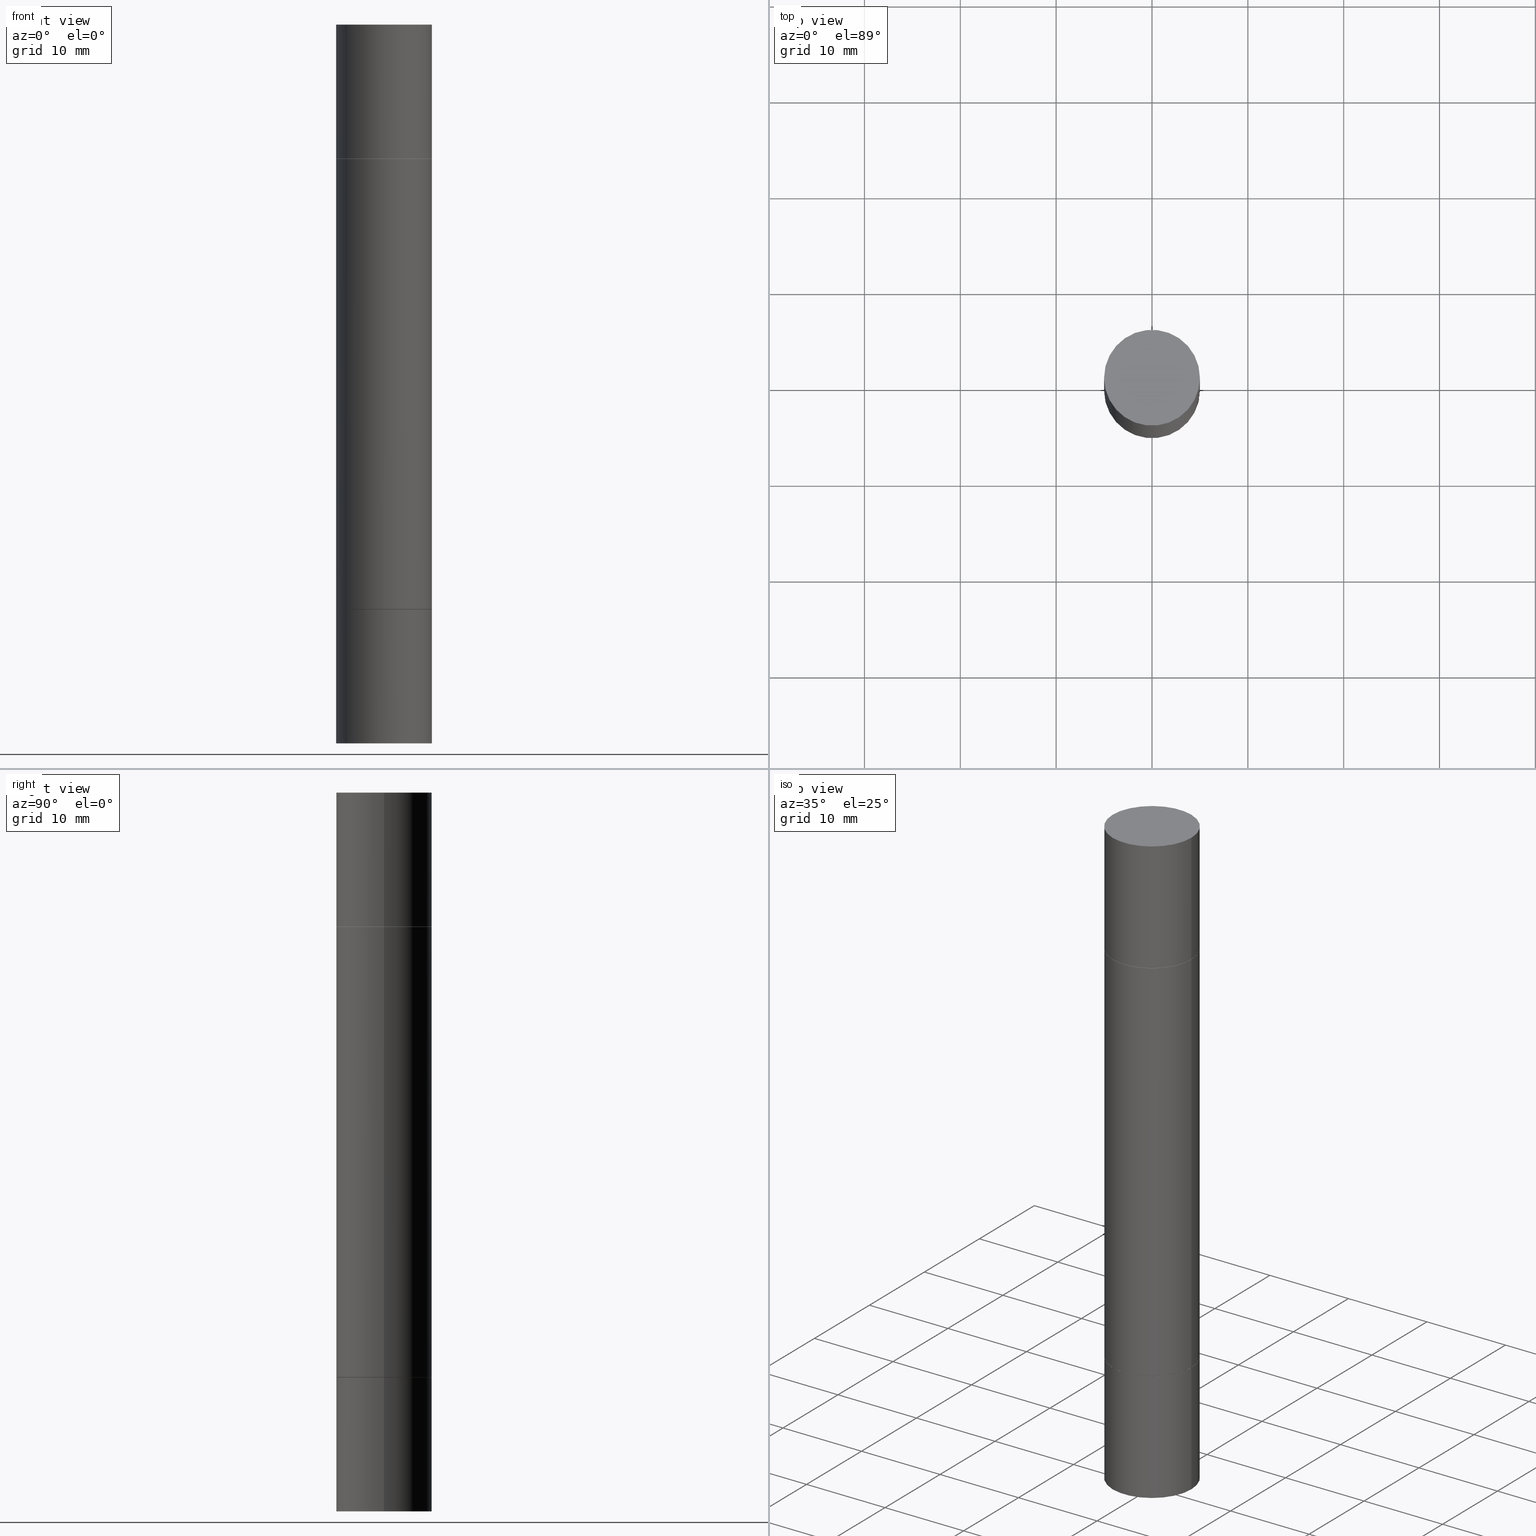
[diagram: canonical four-view strip — front | top / right | iso, engineering-drawing reading convention]
A machine part, canonical four-view strip (front | top / right | iso — engineering-drawing reading convention). The complete STEP part file that produces these views, byte-faithful:
ISO-10303-21;
HEADER;
FILE_DESCRIPTION (( 'STEP AP203' ),
    '1' );
FILE_NAME ('49044.STEP',
    '2024-03-04T15:52:55',
    ( '' ),
    ( '' ),
    'SwSTEP 2.0',
    'SolidWorks 2023',
    '' );
FILE_SCHEMA (( 'CONFIG_CONTROL_DESIGN' ));
ENDSEC;

DATA;
#1 = ORIENTED_EDGE ( 'NONE', *, *, #195, .T. ) ;
#2 = CARTESIAN_POINT ( 'NONE',  ( 7.220980290903470182E-29, -1.030964609733603853E-14, -2.952799999999999869 ) ) ;
#3 = CARTESIAN_POINT ( 'NONE',  ( 5.873037884934223228E-29, -1.923200839900336120E-15, -0.5511999999999995792 ) ) ;
#4 = APPROVAL_ROLE ( '' ) ;
#5 = ORIENTED_EDGE ( 'NONE', *, *, #338, .T. ) ;
#6 = CARTESIAN_POINT ( 'NONE',  ( 0.000000000000000000, -1.031172645228302408E-14, -2.952799999999998981 ) ) ;
#7 = CIRCLE ( 'NONE', #399, 0.1968500000000000250 ) ;
#8 = PRODUCT ( '49044', '49044', '', ( #312 ) ) ;
#9 = VERTEX_POINT ( 'NONE', #155 ) ;
#10 = CARTESIAN_POINT ( 'NONE',  ( 0.1968500000000000250, -3.297797043002877729E-15, -0.5511999999999995792 ) ) ;
#11 = VERTEX_POINT ( 'NONE', #160 ) ;
#12 = DIRECTION ( 'NONE',  ( -2.445468806185136597E-29, 3.491481338843145583E-15, 1.000000000000000000 ) ) ;
#13 = VERTEX_POINT ( 'NONE', #507 ) ;
#14 = DIRECTION ( 'NONE',  ( 1.000000000000000000, -6.982962677686268288E-15, 0.000000000000000000 ) ) ;
#15 = VERTEX_POINT ( 'NONE', #358 ) ;
#16 = FACE_OUTER_BOUND ( 'NONE', #538, .T. ) ;
#17 = CARTESIAN_POINT ( 'NONE',  ( 0.000000000000000000, -1.031172645228302408E-14, -2.952799999999998981 ) ) ;
#18 = DIRECTION ( 'NONE',  ( -2.445468806185136597E-29, 3.491481338843145583E-15, 1.000000000000000000 ) ) ;
#19 = ORIENTED_EDGE ( 'NONE', *, *, #133, .T. ) ;
#20 = PRODUCT_RELATED_PRODUCT_CATEGORY ( 'detail', '', ( #8 ) ) ;
#21 = DIRECTION ( 'NONE',  ( -2.438088387897959769E-29, -3.492890411551753071E-15, -1.000000000000000000 ) ) ;
#22 = CIRCLE ( 'NONE', #405, 0.1968500000000000250 ) ;
#23 = ADVANCED_FACE ( 'NONE', ( #514 ), #202, .T. ) ;
#24 = AXIS2_PLACEMENT_3D ( 'NONE', #270, #223, #265 ) ;
#25 = DIRECTION ( 'NONE',  ( 1.000000000000000000, -6.982962677686264344E-15, 0.000000000000000000 ) ) ;
#26 = EDGE_CURVE ( 'NONE', #629, #231, #608, .T. ) ;
#27 = DIRECTION ( 'NONE',  ( 1.000000000000000000, -6.982962677686262766E-15, 0.000000000000000000 ) ) ;
#28 = CARTESIAN_POINT ( 'NONE',  ( 0.000000000000000000, 0.000000000000000000, -1.476399999999999491 ) ) ;
#29 = CYLINDRICAL_SURFACE ( 'NONE', #299, 0.1968500000000000250 ) ;
#30 = ORIENTED_EDGE ( 'NONE', *, *, #258, .T. ) ;
#31 = AXIS2_PLACEMENT_3D ( 'NONE', #281, #109, #232 ) ;
#32 = MANIFOLD_SOLID_BREP ( 'Combine1', #427 ) ;
#33 = DIRECTION ( 'NONE',  ( 0.000000000000000000, 3.492185875197449524E-15, 1.000000000000000000 ) ) ;
#34 = ORIENTED_EDGE ( 'NONE', *, *, #464, .T. ) ;
#35 = ORIENTED_EDGE ( 'NONE', *, *, #572, .F. ) ;
#36 = DATE_AND_TIME ( #302, #245 ) ;
#37 = DIRECTION ( 'NONE',  ( -2.445468806185136597E-29, -3.492890411551752677E-15, -1.000000000000000000 ) ) ;
#38 = EDGE_CURVE ( 'NONE', #484, #207, #257, .T. ) ;
#39 = AXIS2_PLACEMENT_3D ( 'NONE', #453, #345, #351 ) ;
#40 = EDGE_CURVE ( 'NONE', #92, #11, #210, .T. ) ;
#41 = ORIENTED_EDGE ( 'NONE', *, *, #572, .T. ) ;
#42 = APPROVAL_ROLE ( '' ) ;
#43 = CARTESIAN_POINT ( 'NONE',  ( -0.1958499999999999963, -6.993543635379541272E-15, -2.401599999999999735 ) ) ;
#44 = DIRECTION ( 'NONE',  ( 1.000000000000000000, -6.982962677686267499E-15, 0.000000000000000000 ) ) ;
#45 = ADVANCED_FACE ( 'NONE', ( #671 ), #612, .T. ) ;
#46 = DIRECTION ( 'NONE',  ( -0.7071067811864267805, 7.493145998869918709E-15, 0.7071067811866682540 ) ) ;
#47 = DIRECTION ( 'NONE',  ( 1.000000000000000000, -6.982962677686267499E-15, 0.000000000000000000 ) ) ;
#48 = DIRECTION ( 'NONE',  ( 1.000000000000000000, -6.982962677686262766E-15, 0.000000000000000000 ) ) ;
#49 = AXIS2_PLACEMENT_3D ( 'NONE', #408, #37, #468 ) ;
#50 = AXIS2_PLACEMENT_3D ( 'NONE', #364, #56, #570 ) ;
#51 = ADVANCED_FACE ( 'NONE', ( #313 ), #205, .T. ) ;
#52 = CARTESIAN_POINT ( 'NONE',  ( 0.1968500000000000250, -1.374596203102541608E-15, 9.598753983154300858E-30 ) ) ;
#53 = CARTESIAN_POINT ( 'NONE',  ( 0.1968499999999998307, -1.168632265538556411E-14, -2.952799999999998981 ) ) ;
#54 = ORIENTED_EDGE ( 'NONE', *, *, #200, .T. ) ;
#55 = CARTESIAN_POINT ( 'NONE',  ( -0.1968500000000000250, -7.948690465007109319E-15, -2.952799999999999869 ) ) ;
#56 = DIRECTION ( 'NONE',  ( -2.438088387897959769E-29, -3.492890411551753071E-15, -1.000000000000000000 ) ) ;
#57 = COORDINATED_UNIVERSAL_TIME_OFFSET ( 5, 0, .BEHIND. ) ;
#58 = ORIENTED_EDGE ( 'NONE', *, *, #308, .T. ) ;
#59 = DIRECTION ( 'NONE',  ( 1.000000000000000000, -6.982962677686267499E-15, 0.000000000000000000 ) ) ;
#60 = ORIENTED_EDGE ( 'NONE', *, *, #165, .F. ) ;
#61 = EDGE_CURVE ( 'NONE', #541, #660, #22, .T. ) ;
#62 = ADVANCED_FACE ( 'NONE', ( #316 ), #527, .F. ) ;
#63 = ORIENTED_EDGE ( 'NONE', *, *, #61, .F. ) ;
#64 = CIRCLE ( 'NONE', #359, 0.1968500000000000250 ) ;
#65 = CARTESIAN_POINT ( 'NONE',  ( 0.1968500000000000250, -9.756246305129394287E-15, -2.400599999999999401 ) ) ;
#66 = AXIS2_PLACEMENT_3D ( 'NONE', #17, #131, #539 ) ;
#67 = VERTEX_POINT ( 'NONE', #65 ) ;
#68 = CARTESIAN_POINT ( 'NONE',  ( -0.1968500000000000250, 3.899287883846529545E-16, 5.463695987328561936E-16 ) ) ;
#69 = ORIENTED_EDGE ( 'NONE', *, *, #194, .F. ) ;
#70 = DIRECTION ( 'NONE',  ( 1.000000000000000000, -6.982962677686268288E-15, 0.000000000000000000 ) ) ;
#71 = DIRECTION ( 'NONE',  ( -2.445468806185136877E-29, 3.491481338843145188E-15, 1.000000000000000000 ) ) ;
#72 = EDGE_LOOP ( 'NONE', ( #325, #226, #30, #460 ) ) ;
#73 = PLANE ( 'NONE',  #307 ) ;
#74 = COORDINATED_UNIVERSAL_TIME_OFFSET ( 5, 0, .BEHIND. ) ;
#75 = ORIENTED_EDGE ( 'NONE', *, *, #258, .F. ) ;
#76 = EDGE_CURVE ( 'NONE', #107, #582, #125, .T. ) ;
#77 = CARTESIAN_POINT ( 'NONE',  ( 5.873037884934223228E-29, -1.923200839900334937E-15, -0.5511999999999992461 ) ) ;
#78 = DIRECTION ( 'NONE',  ( 2.445468806185136597E-29, 3.492890411551752677E-15, 1.000000000000000000 ) ) ;
#79 = EDGE_CURVE ( 'NONE', #13, #294, #94, .T. ) ;
#80 = AXIS2_PLACEMENT_3D ( 'NONE', #273, #492, #581 ) ;
#81 = VECTOR ( 'NONE', #331, 39.37007874015748143 ) ;
#82 = DIRECTION ( 'NONE',  ( -2.445468806185136597E-29, -3.492890411551752677E-15, -1.000000000000000000 ) ) ;
#83 = APPROVAL_PERSON_ORGANIZATION ( #640, #402, #4 ) ;
#84 = CARTESIAN_POINT ( 'NONE',  ( 0.1968499999999998307, -4.915354592592491624E-15, -1.476399999999999491 ) ) ;
#85 = CARTESIAN_POINT ( 'NONE',  ( 1.374596203102613789E-15, 0.1968500000000000250, -5.463695987328526437E-16 ) ) ;
#86 = CC_DESIGN_DATE_AND_TIME_ASSIGNMENT ( #118, #175, ( #375 ) ) ;
#87 = ADVANCED_FACE ( 'NONE', ( #380 ), #120, .F. ) ;
#88 = VECTOR ( 'NONE', #605, 39.37007874015748143 ) ;
#89 = DIRECTION ( 'NONE',  ( -2.445468806185136877E-29, -3.492890411551753071E-15, -1.000000000000000000 ) ) ;
#90 = PERSON_AND_ORGANIZATION ( #628, #657 ) ;
#91 = EDGE_CURVE ( 'NONE', #587, #580, #371, .T. ) ;
#92 = VERTEX_POINT ( 'NONE', #55 ) ;
#93 = PERSON_AND_ORGANIZATION ( #628, #657 ) ;
#94 = CIRCLE ( 'NONE', #561, 0.1968500000000000250 ) ;
#95 = CIRCLE ( 'NONE', #613, 0.1968500000000000250 ) ;
#96 = CC_DESIGN_APPROVAL ( #402, ( #375 ) ) ;
#97 = ORIENTED_EDGE ( 'NONE', *, *, #209, .F. ) ;
#98 = CARTESIAN_POINT ( 'NONE',  ( 5.870592416128037625E-29, -1.926693730311889446E-15, -0.5521999999999996911 ) ) ;
#99 = APPLICATION_PROTOCOL_DEFINITION ( 'international standard', 'config_control_design', 1994, #404 ) ;
#100 = ORIENTED_EDGE ( 'NONE', *, *, #301, .F. ) ;
#101 = CC_DESIGN_PERSON_AND_ORGANIZATION_ASSIGNMENT ( #276, #535, ( #519 ) ) ;
#102 = PLANE ( 'NONE',  #406 ) ;
#103 = CARTESIAN_POINT ( 'NONE',  ( 5.873037884934223228E-29, -1.923200839900334937E-15, -0.5511999999999992461 ) ) ;
#104 = DIRECTION ( 'NONE',  ( 1.000000000000000000, -6.982962677686265922E-15, 4.876176775795935793E-29 ) ) ;
#105 = VECTOR ( 'NONE', #71, 39.37007874015748143 ) ;
#106 = CIRCLE ( 'NONE', #673, 0.1968500000000000250 ) ;
#107 = VERTEX_POINT ( 'NONE', #594 ) ;
#108 = CONICAL_SURFACE ( 'NONE', #467, 0.1958499999999999963, 0.7853981633972775267 ) ;
#109 = DIRECTION ( 'NONE',  ( 2.438088387897960049E-29, -3.491481338843145188E-15, -1.000000000000000000 ) ) ;
#110 = LINE ( 'NONE', #274, #298 ) ;
#111 = PRODUCT_DEFINITION ( 'UNKNOWN', '', #519, #414 ) ;
#112 = ORIENTED_EDGE ( 'NONE', *, *, #194, .T. ) ;
#113 = ADVANCED_FACE ( 'NONE', ( #16 ), #264, .T. ) ;
#114 = DIRECTION ( 'NONE',  ( -2.445468806185136597E-29, -3.492890411551752677E-15, -1.000000000000000000 ) ) ;
#115 = DIMENSIONAL_EXPONENTS ( 1.000000000000000000, 0.000000000000000000, 0.000000000000000000, 0.000000000000000000, 0.000000000000000000, 0.000000000000000000, 0.000000000000000000 ) ;
#116 = VERTEX_POINT ( 'NONE', #326 ) ;
#117 = ORIENTED_EDGE ( 'NONE', *, *, #392, .T. ) ;
#118 = DATE_AND_TIME ( #122, #615 ) ;
#119 = VERTEX_POINT ( 'NONE', #637 ) ;
#120 = PLANE ( 'NONE',  #574 ) ;
#121 = DIRECTION ( 'NONE',  ( -1.000000000000000000, 6.982962677686265922E-15, -9.839502134516470631E-33 ) ) ;
#122 = CALENDAR_DATE ( 2024, 4, 3 ) ;
#123 = ORIENTED_EDGE ( 'NONE', *, *, #233, .F. ) ;
#124 = CIRCLE ( 'NONE', #589, 0.1968500000000000250 ) ;
#125 = LINE ( 'NONE', #52, #105 ) ;
#126 = CONICAL_SURFACE ( 'NONE', #401, 0.1958499999999999963, 0.7853981633972775267 ) ;
#127 = EDGE_LOOP ( 'NONE', ( #100, #645, #609, #355 ) ) ;
#128 = CYLINDRICAL_SURFACE ( 'NONE', #225, 0.1968499999999998307 ) ;
#129 = ORIENTED_EDGE ( 'NONE', *, *, #133, .F. ) ;
#130 = LINE ( 'NONE', #659, #88 ) ;
#131 = DIRECTION ( 'NONE',  ( -2.445468806185136597E-29, -3.492890411551752677E-15, -1.000000000000000000 ) ) ;
#132 = CARTESIAN_POINT ( 'NONE',  ( -0.1958499999999999963, -5.778885032436711881E-16, -0.5511999999999992461 ) ) ;
#133 = EDGE_CURVE ( 'NONE', #443, #629, #547, .T. ) ;
#134 = FACE_OUTER_BOUND ( 'NONE', #454, .T. ) ;
#135 = DIRECTION ( 'NONE',  ( -2.445468806185136877E-29, -3.492890411551753071E-15, -1.000000000000000000 ) ) ;
#136 = LINE ( 'NONE', #456, #497 ) ;
#137 = FACE_OUTER_BOUND ( 'NONE', #342, .T. ) ;
#138 = CIRCLE ( 'NONE', #601, 0.1968500000000000250 ) ;
#139 = EDGE_LOOP ( 'NONE', ( #564, #590, #379, #35 ) ) ;
#140 = CARTESIAN_POINT ( 'NONE',  ( 5.873037884934223228E-29, -8.385141583365697263E-15, -2.401599999999999735 ) ) ;
#141 = AXIS2_PLACEMENT_3D ( 'NONE', #374, #164, #48 ) ;
#142 = CC_DESIGN_PERSON_AND_ORGANIZATION_ASSIGNMENT ( #93, #206, ( #111 ) ) ;
#143 = DIRECTION ( 'NONE',  ( -2.445468806185136597E-29, -3.492890411551752677E-15, -1.000000000000000000 ) ) ;
#144 = EDGE_CURVE ( 'NONE', #580, #587, #512, .T. ) ;
#145 = DIRECTION ( 'NONE',  ( -2.445468806185136597E-29, 3.491481338843145583E-15, 1.000000000000000000 ) ) ;
#146 = CC_DESIGN_PERSON_AND_ORGANIZATION_ASSIGNMENT ( #216, #150, ( #375 ) ) ;
#147 = VECTOR ( 'NONE', #542, 39.37007874015748143 ) ;
#148 = CC_DESIGN_APPROVAL ( #193, ( #111 ) ) ;
#149 = ADVANCED_FACE ( 'NONE', ( #679 ), #488, .T. ) ;
#150 = PERSON_AND_ORGANIZATION_ROLE ( 'classification_officer' ) ;
#151 = CARTESIAN_POINT ( 'NONE',  ( 0.1958499999999999963, -3.290814080325190531E-15, -0.5511999999999992461 ) ) ;
#152 = ADVANCED_FACE ( 'NONE', ( #575 ), #436, .T. ) ;
#153 = CALENDAR_DATE ( 2024, 4, 3 ) ;
#154 = ORIENTED_EDGE ( 'NONE', *, *, #368, .T. ) ;
#155 = CARTESIAN_POINT ( 'NONE',  ( -0.1968500000000000250, -5.762046994505618475E-16, -0.5521999999999996911 ) ) ;
#156 = AXIS2_PLACEMENT_3D ( 'NONE', #28, #33, #187 ) ;
#157 = CONICAL_SURFACE ( 'NONE', #448, 0.1958499999999999963, 0.7853981633972775267 ) ;
#158 = DIRECTION ( 'NONE',  ( -2.445468806185136877E-29, 3.491481338843145188E-15, 1.000000000000000000 ) ) ;
#159 = LINE ( 'NONE', #53, #606 ) ;
#160 = CARTESIAN_POINT ( 'NONE',  ( -0.1968500000000000250, -7.948690465007109319E-15, -2.401599999999999735 ) ) ;
#161 = DIRECTION ( 'NONE',  ( 1.000000000000000000, -6.982962677686268288E-15, 0.000000000000000000 ) ) ;
#162 = DIRECTION ( 'NONE',  ( -2.445468806185136597E-29, 3.491481338843145583E-15, 1.000000000000000000 ) ) ;
#163 = DIRECTION ( 'NONE',  ( 1.000000000000000000, -6.982962677686267499E-15, 0.000000000000000000 ) ) ;
#164 = DIRECTION ( 'NONE',  ( -2.445468806185136597E-29, 3.491481338843145583E-15, 1.000000000000000000 ) ) ;
#165 = EDGE_CURVE ( 'NONE', #560, #228, #211, .T. ) ;
#166 = AXIS2_PLACEMENT_3D ( 'NONE', #230, #452, #27 ) ;
#167 = EDGE_LOOP ( 'NONE', ( #69, #626, #631, #530 ) ) ;
#168 = LOCAL_TIME ( 10, 52, 55.00000000000000000, #74 ) ;
#169 = PRODUCT_DEFINITION_SHAPE ( 'NONE', 'NONE',  #111 ) ;
#170 = CARTESIAN_POINT ( 'NONE',  ( 5.873037884934223228E-29, -8.385141583365697263E-15, -2.401599999999999735 ) ) ;
#171 = DIRECTION ( 'NONE',  ( 2.438088387897959769E-29, 3.492890411551753071E-15, 1.000000000000000000 ) ) ;
#172 = ORIENTED_EDGE ( 'NONE', *, *, #218, .F. ) ;
#173 = DIRECTION ( 'NONE',  ( 1.000000000000000000, -6.982962677686265922E-15, 0.000000000000000000 ) ) ;
#174 = DIRECTION ( 'NONE',  ( 2.445468806185136597E-29, 3.492890411551752677E-15, 1.000000000000000000 ) ) ;
#175 = DATE_TIME_ROLE ( 'classification_date' ) ;
#176 = EDGE_LOOP ( 'NONE', ( #254, #277 ) ) ;
#177 = DIRECTION ( 'NONE',  ( 1.000000000000000000, -6.982962677686265922E-15, 0.000000000000000000 ) ) ;
#178 = DIRECTION ( 'NONE',  ( -2.445468806185136597E-29, 3.491481338843145583E-15, 1.000000000000000000 ) ) ;
#179 = APPROVAL_STATUS ( 'not_yet_approved' ) ;
#180 = EDGE_LOOP ( 'NONE', ( #19, #491, #551, #75 ) ) ;
#181 = AXIS2_PLACEMENT_3D ( 'NONE', #475, #676, #163 ) ;
#182 = DIRECTION ( 'NONE',  ( -2.445468806185136877E-29, -3.492890411551753071E-15, -1.000000000000000000 ) ) ;
#183 = AXIS2_PLACEMENT_3D ( 'NONE', #271, #419, #224 ) ;
#184 = FACE_OUTER_BOUND ( 'NONE', #450, .T. ) ;
#185 = EDGE_CURVE ( 'NONE', #107, #92, #655, .T. ) ;
#186 = CARTESIAN_POINT ( 'NONE',  ( -0.1958499999999999963, -6.988245181031318870E-15, -2.401599999999999735 ) ) ;
#187 = DIRECTION ( 'NONE',  ( 0.000000000000000000, 1.000000000000000000, -3.492185875197449524E-15 ) ) ;
#188 = CARTESIAN_POINT ( 'NONE',  ( 0.1958499999999999963, -3.290814080325190531E-15, -0.5511999999999992461 ) ) ;
#189 = FACE_OUTER_BOUND ( 'NONE', #337, .T. ) ;
#190 = CARTESIAN_POINT ( 'NONE',  ( 0.1968500000000000250, -1.168632265538556569E-14, -2.952799999999998981 ) ) ;
#191 = ORIENTED_EDGE ( 'NONE', *, *, #290, .T. ) ;
#192 = DIRECTION ( 'NONE',  ( 1.000000000000000000, -6.982962677686264344E-15, 0.000000000000000000 ) ) ;
#193 = APPROVAL ( #411, 'UNSPECIFIED' ) ;
#194 = EDGE_CURVE ( 'NONE', #292, #9, #537, .T. ) ;
#195 = EDGE_CURVE ( 'NONE', #15, #425, #64, .T. ) ;
#196 = CIRCLE ( 'NONE', #335, 0.1958499999999999963 ) ;
#197 = LOCAL_TIME ( 10, 52, 55.00000000000000000, #256 ) ;
#198 = EDGE_CURVE ( 'NONE', #425, #15, #563, .T. ) ;
#199 = PLANE ( 'NONE',  #576 ) ;
#200 = EDGE_CURVE ( 'NONE', #310, #231, #383, .T. ) ;
#201 = EDGE_CURVE ( 'NONE', #9, #580, #389, .T. ) ;
#202 = CYLINDRICAL_SURFACE ( 'NONE', #49, 0.1968500000000000250 ) ;
#203 = AXIS2_PLACEMENT_3D ( 'NONE', #321, #523, #339 ) ;
#204 = CONICAL_SURFACE ( 'NONE', #549, 0.1958499999999999963, 0.7853981633972775267 ) ;
#205 = CYLINDRICAL_SURFACE ( 'NONE', #516, 0.1968500000000000250 ) ;
#206 = PERSON_AND_ORGANIZATION_ROLE ( 'creator' ) ;
#207 = VERTEX_POINT ( 'NONE', #603 ) ;
#208 = APPROVAL ( #614, 'UNSPECIFIED' ) ;
#209 = EDGE_CURVE ( 'NONE', #15, #294, #130, .T. ) ;
#210 = LINE ( 'NONE', #471, #305 ) ;
#211 = CIRCLE ( 'NONE', #203, 0.1968500000000000250 ) ;
#212 = ADVANCED_FACE ( 'NONE', ( #134 ), #199, .F. ) ;
#213 = PERSON_AND_ORGANIZATION ( #628, #657 ) ;
#214 = EDGE_LOOP ( 'NONE', ( #252, #332, #593, #97 ) ) ;
#215 =( CONVERSION_BASED_UNIT ( 'INCH', #677 ) LENGTH_UNIT ( ) NAMED_UNIT ( #115 ) );
#216 = PERSON_AND_ORGANIZATION ( #628, #657 ) ;
#217 = DIRECTION ( 'NONE',  ( 0.000000000000000000, 1.000000000000000000, -4.163344669033678790E-15 ) ) ;
#218 = EDGE_CURVE ( 'NONE', #620, #119, #457, .T. ) ;
#219 = ADVANCED_FACE ( 'NONE', ( #555 ), #287, .F. ) ;
#220 = ORIENTED_EDGE ( 'NONE', *, *, #409, .F. ) ;
#221 = EDGE_CURVE ( 'NONE', #9, #207, #474, .T. ) ;
#222 = CARTESIAN_POINT ( 'NONE',  ( -0.1958499999999999963, -5.795723070367805287E-16, -0.5511999999999992461 ) ) ;
#223 = DIRECTION ( 'NONE',  ( -2.445468806185136597E-29, 3.491481338843145583E-15, 1.000000000000000000 ) ) ;
#224 = DIRECTION ( 'NONE',  ( 1.000000000000000000, 0.000000000000000000, 0.000000000000000000 ) ) ;
#225 = AXIS2_PLACEMENT_3D ( 'NONE', #439, #495, #25 ) ;
#226 = ORIENTED_EDGE ( 'NONE', *, *, #409, .T. ) ;
#227 = DIRECTION ( 'NONE',  ( 1.000000000000000000, -6.982962677686264344E-15, 0.000000000000000000 ) ) ;
#228 = VERTEX_POINT ( 'NONE', #403 ) ;
#229 = CARTESIAN_POINT ( 'NONE',  ( 7.220980290903470182E-29, 2.080354946989631982E-18, 5.463695987328526437E-16 ) ) ;
#230 = CARTESIAN_POINT ( 'NONE',  ( 5.873037884934223228E-29, -8.385141583365697263E-15, -2.401599999999999735 ) ) ;
#231 = VERTEX_POINT ( 'NONE', #599 ) ;
#232 = DIRECTION ( 'NONE',  ( -1.000000000000000000, 6.982962677686265922E-15, -4.876176775795935793E-29 ) ) ;
#233 = EDGE_CURVE ( 'NONE', #228, #660, #651, .T. ) ;
#234 = FACE_OUTER_BOUND ( 'NONE', #440, .T. ) ;
#235 = CARTESIAN_POINT ( 'NONE',  ( 1.374596203102600181E-15, 0.1968499999999980543, -0.5512000000000001343 ) ) ;
#236 = ORIENTED_EDGE ( 'NONE', *, *, #91, .T. ) ;
#237 = CIRCLE ( 'NONE', #386, 0.1968500000000000250 ) ;
#238 = LOCAL_TIME ( 10, 52, 55.00000000000000000, #413 ) ;
#239 = CARTESIAN_POINT ( 'NONE',  ( 5.870592416128037625E-29, -1.926693730311889446E-15, -0.5521999999999996911 ) ) ;
#240 = CARTESIAN_POINT ( 'NONE',  ( -0.1958499999999999963, -5.795723070367805287E-16, -0.5511999999999992461 ) ) ;
#241 = ADVANCED_FACE ( 'NONE', ( #137 ), #348, .T. ) ;
#242 = MANIFOLD_SOLID_BREP ( 'Mirror1[3]', #416 ) ;
#243 = VECTOR ( 'NONE', #46, 39.37007874015748143 ) ;
#244 = AXIS2_PLACEMENT_3D ( 'NONE', #550, #501, #328 ) ;
#245 = LOCAL_TIME ( 10, 52, 55.00000000000000000, #505 ) ;
#246 = ORIENTED_EDGE ( 'NONE', *, *, #91, .F. ) ;
#247 = EDGE_CURVE ( 'NONE', #294, #13, #124, .T. ) ;
#248 = ORIENTED_EDGE ( 'NONE', *, *, #221, .F. ) ;
#249 = ORIENTED_EDGE ( 'NONE', *, *, #201, .F. ) ;
#250 = ADVANCED_FACE ( 'NONE', ( #624 ), #322, .T. ) ;
#251 = MANIFOLD_SOLID_BREP ( 'Mirror1[1]', #317 ) ;
#252 = ORIENTED_EDGE ( 'NONE', *, *, #198, .F. ) ;
#253 = AXIS2_PLACEMENT_3D ( 'NONE', #140, #178, #634 ) ;
#254 = ORIENTED_EDGE ( 'NONE', *, *, #266, .T. ) ;
#255 = EDGE_LOOP ( 'NONE', ( #526, #521, #320, #573 ) ) ;
#256 = COORDINATED_UNIVERSAL_TIME_OFFSET ( 5, 0, .BEHIND. ) ;
#257 = LINE ( 'NONE', #151, #672 ) ;
#258 = EDGE_CURVE ( 'NONE', #443, #67, #311, .T. ) ;
#259 = MANIFOLD_SOLID_BREP ( 'Body-Move/Copy2[1]', #275 ) ;
#260 = CARTESIAN_POINT ( 'NONE',  ( 0.1958499999999999963, -9.752754823790552857E-15, -2.401599999999999735 ) ) ;
#261 = EDGE_LOOP ( 'NONE', ( #129, #220 ) ) ;
#262 = AXIS2_PLACEMENT_3D ( 'NONE', #476, #162, #481 ) ;
#263 = VECTOR ( 'NONE', #89, 39.37007874015748143 ) ;
#264 = CYLINDRICAL_SURFACE ( 'NONE', #447, 0.1968499999999998307 ) ;
#265 = DIRECTION ( 'NONE',  ( 1.000000000000000000, -6.982962677686262766E-15, 0.000000000000000000 ) ) ;
#266 = EDGE_CURVE ( 'NONE', #228, #560, #95, .T. ) ;
#267 = CARTESIAN_POINT ( 'NONE',  ( -0.1968500000000000250, 3.899287883846532010E-16, -0.5511999999999995792 ) ) ;
#268 = EDGE_LOOP ( 'NONE', ( #249, #438, #58, #554 ) ) ;
#269 = DIRECTION ( 'NONE',  ( 1.000000000000000000, -6.982962677686265922E-15, 4.876176775795935793E-29 ) ) ;
#270 = CARTESIAN_POINT ( 'NONE',  ( 5.870592416128037625E-29, -8.381650102026854256E-15, -2.400599999999999401 ) ) ;
#271 = CARTESIAN_POINT ( 'NONE',  ( 0.000000000000000000, 0.000000000000000000, 0.000000000000000000 ) ) ;
#272 = EDGE_LOOP ( 'NONE', ( #60, #34, #662, #123 ) ) ;
#273 = CARTESIAN_POINT ( 'NONE',  ( 3.610490145451734531E-29, -5.154823048668018475E-15, -1.476399999999999491 ) ) ;
#274 = CARTESIAN_POINT ( 'NONE',  ( -0.1968500000000000250, -8.961237421421697861E-15, -2.952799999999998981 ) ) ;
#275 = CLOSED_SHELL ( 'NONE', ( #522, #152, #506, #51 ) ) ;
#276 = PERSON_AND_ORGANIZATION ( #628, #657 ) ;
#277 = ORIENTED_EDGE ( 'NONE', *, *, #165, .T. ) ;
#278 = CARTESIAN_POINT ( 'NONE',  ( 7.220980290903470182E-29, 2.080354946989631982E-18, 5.463695987328526437E-16 ) ) ;
#279 = DIRECTION ( 'NONE',  ( -0.7071067811864267805, 2.381258160590016583E-15, -0.7071067811866682540 ) ) ;
#280 = ORIENTED_EDGE ( 'NONE', *, *, #368, .F. ) ;
#281 = CARTESIAN_POINT ( 'NONE',  ( 1.374596203102613789E-15, 0.1968499999999896999, -2.952800000000000313 ) ) ;
#282 = CARTESIAN_POINT ( 'NONE',  ( 0.1958499999999999963, -9.752754823790552857E-15, -2.401599999999999735 ) ) ;
#283 = CARTESIAN_POINT ( 'NONE',  ( -0.1968499999999998307, -2.190269358628626559E-15, -1.476399999999999491 ) ) ;
#284 = ORIENTED_EDGE ( 'NONE', *, *, #638, .T. ) ;
#285 = FACE_OUTER_BOUND ( 'NONE', #268, .T. ) ;
#286 = AXIS2_PLACEMENT_3D ( 'NONE', #543, #78, #546 ) ;
#287 = PLANE ( 'NONE',  #156 ) ;
#288 =( GEOMETRIC_REPRESENTATION_CONTEXT ( 3 ) GLOBAL_UNCERTAINTY_ASSIGNED_CONTEXT ( ( #309 ) ) GLOBAL_UNIT_ASSIGNED_CONTEXT ( ( #215, #622, #571 ) ) REPRESENTATION_CONTEXT ( 'NONE', 'WORKASPACE' ) );
#289 = DIRECTION ( 'NONE',  ( -1.000000000000000000, 6.982962677686265922E-15, -4.876176775795935793E-29 ) ) ;
#290 = EDGE_CURVE ( 'NONE', #292, #484, #196, .T. ) ;
#291 = CARTESIAN_POINT ( 'NONE',  ( 5.873037884934223228E-29, -1.923200839900334937E-15, -0.5511999999999992461 ) ) ;
#292 = VERTEX_POINT ( 'NONE', #430 ) ;
#293 = CARTESIAN_POINT ( 'NONE',  ( 0.1968499999999998307, -1.168632265538556411E-14, -2.952799999999998981 ) ) ;
#294 = VERTEX_POINT ( 'NONE', #10 ) ;
#295 = EDGE_CURVE ( 'NONE', #207, #9, #237, .T. ) ;
#296 = CLOSED_SHELL ( 'NONE', ( #459, #437, #566, #250 ) ) ;
#297 = DIRECTION ( 'NONE',  ( 2.445468806185136597E-29, 3.492890411551752677E-15, 1.000000000000000000 ) ) ;
#298 = VECTOR ( 'NONE', #525, 39.37007874015748143 ) ;
#299 = AXIS2_PLACEMENT_3D ( 'NONE', #552, #145, #604 ) ;
#300 = ORIENTED_EDGE ( 'NONE', *, *, #76, .F. ) ;
#301 = EDGE_CURVE ( 'NONE', #425, #13, #110, .T. ) ;
#302 = CALENDAR_DATE ( 2024, 4, 3 ) ;
#303 = DATE_TIME_ROLE ( 'creation_date' ) ;
#304 = ORIENTED_EDGE ( 'NONE', *, *, #410, .F. ) ;
#305 = VECTOR ( 'NONE', #158, 39.37007874015748143 ) ;
#306 = ADVANCED_FACE ( 'NONE', ( #472 ), #617, .F. ) ;
#307 = AXIS2_PLACEMENT_3D ( 'NONE', #85, #341, #121 ) ;
#308 = EDGE_CURVE ( 'NONE', #207, #587, #159, .T. ) ;
#309 = UNCERTAINTY_MEASURE_WITH_UNIT (LENGTH_MEASURE( 1.000000000000000082E-05 ), #215, 'distance_accuracy_value', 'NONE');
#310 = VERTEX_POINT ( 'NONE', #378 ) ;
#311 = LINE ( 'NONE', #260, #466 ) ;
#312 = MECHANICAL_CONTEXT ( 'NONE', #404, 'mechanical' ) ;
#313 = FACE_OUTER_BOUND ( 'NONE', #139, .T. ) ;
#314 = DIRECTION ( 'NONE',  ( -1.000000000000000000, 6.982962677686265922E-15, -9.839502134516470631E-33 ) ) ;
#315 = DIRECTION ( 'NONE',  ( 1.000000000000000000, -6.982962677686268288E-15, 0.000000000000000000 ) ) ;
#316 = FACE_OUTER_BOUND ( 'NONE', #261, .T. ) ;
#317 = CLOSED_SHELL ( 'NONE', ( #113, #524, #219, #212, #658, #417 ) ) ;
#318 = CIRCLE ( 'NONE', #24, 0.1968500000000000250 ) ;
#319 = VECTOR ( 'NONE', #135, 39.37007874015748143 ) ;
#320 = ORIENTED_EDGE ( 'NONE', *, *, #233, .T. ) ;
#321 = CARTESIAN_POINT ( 'NONE',  ( 7.220980290903470182E-29, 2.080354946989631982E-18, 5.463695987328526437E-16 ) ) ;
#322 = CYLINDRICAL_SURFACE ( 'NONE', #181, 0.1968500000000000250 ) ;
#323 =( LENGTH_UNIT ( ) NAMED_UNIT ( * ) SI_UNIT ( $, .METRE. ) );
#324 = APPROVAL_DATE_TIME ( #635, #402 ) ;
#325 = ORIENTED_EDGE ( 'NONE', *, *, #26, .F. ) ;
#326 = CARTESIAN_POINT ( 'NONE',  ( 0.1968500000000000250, -3.301289933414429871E-15, -0.5521999999999996911 ) ) ;
#327 = ORIENTED_EDGE ( 'NONE', *, *, #144, .T. ) ;
#328 = DIRECTION ( 'NONE',  ( 1.000000000000000000, -6.982962677686264344E-15, 0.000000000000000000 ) ) ;
#329 = EDGE_LOOP ( 'NONE', ( #340, #41 ) ) ;
#330 = CC_DESIGN_PERSON_AND_ORGANIZATION_ASSIGNMENT ( #213, #595, ( #8 ) ) ;
#331 = DIRECTION ( 'NONE',  ( -0.7071067811864267805, 2.381258160590016583E-15, -0.7071067811866682540 ) ) ;
#332 = ORIENTED_EDGE ( 'NONE', *, *, #301, .T. ) ;
#333 = DIRECTION ( 'NONE',  ( -2.445468806185136597E-29, 3.491481338843145583E-15, 1.000000000000000000 ) ) ;
#334 = AXIS2_PLACEMENT_3D ( 'NONE', #170, #517, #269 ) ;
#335 = AXIS2_PLACEMENT_3D ( 'NONE', #680, #578, #161 ) ;
#336 = CC_DESIGN_SECURITY_CLASSIFICATION ( #375, ( #519 ) ) ;
#337 = EDGE_LOOP ( 'NONE', ( #429, #633 ) ) ;
#338 = EDGE_CURVE ( 'NONE', #231, #67, #318, .T. ) ;
#339 = DIRECTION ( 'NONE',  ( 1.000000000000000000, -6.982962677686265922E-15, 0.000000000000000000 ) ) ;
#340 = ORIENTED_EDGE ( 'NONE', *, *, #410, .T. ) ;
#341 = DIRECTION ( 'NONE',  ( 2.438088387897959769E-29, 3.492890411551753071E-15, 1.000000000000000000 ) ) ;
#342 = EDGE_LOOP ( 'NONE', ( #584, #280, #487, #669 ) ) ;
#343 = CARTESIAN_POINT ( 'NONE',  ( 0.1968500000000000250, -3.297797043002877729E-15, -0.5511999999999995792 ) ) ;
#344 = DIRECTION ( 'NONE',  ( -2.445468806185136597E-29, -3.492890411551752677E-15, -1.000000000000000000 ) ) ;
#345 = DIRECTION ( 'NONE',  ( 2.445468806185136597E-29, 3.492890411551752677E-15, 1.000000000000000000 ) ) ;
#346 = DIRECTION ( 'NONE',  ( 2.438088387897960049E-29, -3.491481338843145188E-15, -1.000000000000000000 ) ) ;
#347 = CIRCLE ( 'NONE', #431, 0.1958499999999999963 ) ;
#348 = CYLINDRICAL_SURFACE ( 'NONE', #244, 0.1968499999999998307 ) ;
#349 = CARTESIAN_POINT ( 'NONE',  ( 5.873037884934223228E-29, -1.923200839900334937E-15, -0.5511999999999992461 ) ) ;
#350 = DIRECTION ( 'NONE',  ( -1.000000000000000000, 6.982962677686265922E-15, -9.839502134516470631E-33 ) ) ;
#351 = DIRECTION ( 'NONE',  ( 1.000000000000000000, -6.982962677686268288E-15, 0.000000000000000000 ) ) ;
#352 = ADVANCED_FACE ( 'NONE', ( #477 ), #102, .T. ) ;
#353 = PERSON_AND_ORGANIZATION ( #628, #657 ) ;
#354 = CIRCLE ( 'NONE', #557, 0.1958499999999999963 ) ;
#355 = ORIENTED_EDGE ( 'NONE', *, *, #247, .T. ) ;
#356 = EDGE_LOOP ( 'NONE', ( #384, #63 ) ) ;
#357 = EDGE_CURVE ( 'NONE', #92, #107, #106, .T. ) ;
#358 = CARTESIAN_POINT ( 'NONE',  ( 0.1968500000000000250, -1.372515848155552113E-15, 5.463695987328526437E-16 ) ) ;
#359 = AXIS2_PLACEMENT_3D ( 'NONE', #229, #632, #173 ) ;
#360 = AXIS2_PLACEMENT_3D ( 'NONE', #278, #441, #177 ) ;
#361 = DIRECTION ( 'NONE',  ( 2.445468806185136597E-29, 3.492890411551752677E-15, 1.000000000000000000 ) ) ;
#362 = AXIS2_PLACEMENT_3D ( 'NONE', #545, #18, #602 ) ;
#363 = DIRECTION ( 'NONE',  ( -2.445468806185136597E-29, 3.491481338843145583E-15, 1.000000000000000000 ) ) ;
#364 = CARTESIAN_POINT ( 'NONE',  ( 5.873037884934223228E-29, -1.923200839900334937E-15, -0.5511999999999992461 ) ) ;
#365 = CARTESIAN_POINT ( 'NONE',  ( 5.873037884934223228E-29, -1.923200839900334937E-15, -0.5511999999999992461 ) ) ;
#366 = DIRECTION ( 'NONE',  ( 1.000000000000000000, -6.982962677686267499E-15, 0.000000000000000000 ) ) ;
#367 = DIRECTION ( 'NONE',  ( 2.445468806185136597E-29, 3.492890411551752677E-15, 1.000000000000000000 ) ) ;
#368 = EDGE_CURVE ( 'NONE', #116, #310, #496, .T. ) ;
#369 = ORIENTED_EDGE ( 'NONE', *, *, #218, .T. ) ;
#370 = CARTESIAN_POINT ( 'NONE',  ( 1.374596203102600181E-15, 0.1968499999999980543, -0.5512000000000001343 ) ) ;
#371 = CIRCLE ( 'NONE', #80, 0.1968499999999998307 ) ;
#372 = DIRECTION ( 'NONE',  ( 1.000000000000000000, -6.982962677686265922E-15, 0.000000000000000000 ) ) ;
#373 = CIRCLE ( 'NONE', #166, 0.1958499999999999963 ) ;
#374 = CARTESIAN_POINT ( 'NONE',  ( 5.873037884934223228E-29, -8.385141583365697263E-15, -2.401599999999999735 ) ) ;
#375 = SECURITY_CLASSIFICATION ( '', '', #678 ) ;
#376 = EDGE_LOOP ( 'NONE', ( #172, #117, #415, #619 ) ) ;
#377 = DIRECTION ( 'NONE',  ( -1.000000000000000000, 6.982962677686265922E-15, -9.839502134516470631E-33 ) ) ;
#378 = CARTESIAN_POINT ( 'NONE',  ( -0.1968500000000000250, -5.762046994505618475E-16, -0.5521999999999996911 ) ) ;
#379 = ORIENTED_EDGE ( 'NONE', *, *, #76, .T. ) ;
#380 = FACE_OUTER_BOUND ( 'NONE', #356, .T. ) ;
#381 = CARTESIAN_POINT ( 'NONE',  ( 5.873037884934223228E-29, -1.923200839900334937E-15, -0.5511999999999992461 ) ) ;
#382 = ORIENTED_EDGE ( 'NONE', *, *, #649, .T. ) ;
#383 = LINE ( 'NONE', #642, #532 ) ;
#384 = ORIENTED_EDGE ( 'NONE', *, *, #652, .F. ) ;
#385 = FACE_OUTER_BOUND ( 'NONE', #214, .T. ) ;
#386 = AXIS2_PLACEMENT_3D ( 'NONE', #98, #367, #44 ) ;
#387 = CALENDAR_DATE ( 2024, 4, 3 ) ;
#388 = EDGE_LOOP ( 'NONE', ( #513, #675 ) ) ;
#389 = LINE ( 'NONE', #400, #147 ) ;
#390 = CYLINDRICAL_SURFACE ( 'NONE', #458, 0.1968499999999998307 ) ;
#391 = CARTESIAN_POINT ( 'NONE',  ( 5.873037884934223228E-29, -1.923200839900334937E-15, -0.5511999999999992461 ) ) ;
#392 = EDGE_CURVE ( 'NONE', #620, #310, #397, .T. ) ;
#393 = PLANE ( 'NONE',  #592 ) ;
#394 = DIRECTION ( 'NONE',  ( 2.445468806185136597E-29, 3.492890411551752677E-15, 1.000000000000000000 ) ) ;
#395 = DIRECTION ( 'NONE',  ( -2.445468806185136877E-29, -3.492890411551753071E-15, -1.000000000000000000 ) ) ;
#396 = EDGE_LOOP ( 'NONE', ( #1, #510 ) ) ;
#397 = LINE ( 'NONE', #240, #664 ) ;
#398 = AXIS2_PLACEMENT_3D ( 'NONE', #616, #363, #567 ) ;
#399 = AXIS2_PLACEMENT_3D ( 'NONE', #648, #333, #534 ) ;
#400 = CARTESIAN_POINT ( 'NONE',  ( -0.1968499999999998307, -8.961237421421701017E-15, -2.952799999999998981 ) ) ;
#401 = AXIS2_PLACEMENT_3D ( 'NONE', #365, #143, #70 ) ;
#402 = APPROVAL ( #179, 'UNSPECIFIED' ) ;
#403 = CARTESIAN_POINT ( 'NONE',  ( 0.1968500000000000250, -1.372515848155552113E-15, 5.463695987328526437E-16 ) ) ;
#404 = APPLICATION_CONTEXT ( 'configuration controlled 3d designs of mechanical parts and assemblies' ) ;
#405 = AXIS2_PLACEMENT_3D ( 'NONE', #515, #473, #366 ) ;
#406 = AXIS2_PLACEMENT_3D ( 'NONE', #482, #171, #314 ) ;
#407 = AXIS2_PLACEMENT_3D ( 'NONE', #235, #449, #350 ) ;
#408 = CARTESIAN_POINT ( 'NONE',  ( 0.000000000000000000, -1.031172645228302408E-14, -2.952799999999998981 ) ) ;
#409 = EDGE_CURVE ( 'NONE', #629, #443, #373, .T. ) ;
#410 = EDGE_CURVE ( 'NONE', #582, #11, #548, .T. ) ;
#411 = APPROVAL_STATUS ( 'not_yet_approved' ) ;
#412 = CARTESIAN_POINT ( 'NONE',  ( 0.000000000000000000, 0.000000000000000000, 0.000000000000000000 ) ) ;
#413 = COORDINATED_UNIVERSAL_TIME_OFFSET ( 5, 0, .BEHIND. ) ;
#414 = DESIGN_CONTEXT ( 'detailed design', #544, 'design' ) ;
#415 = ORIENTED_EDGE ( 'NONE', *, *, #434, .T. ) ;
#416 = CLOSED_SHELL ( 'NONE', ( #149, #352, #87, #23 ) ) ;
#417 = ADVANCED_FACE ( 'NONE', ( #285 ), #128, .T. ) ;
#418 = AXIS2_PLACEMENT_3D ( 'NONE', #585, #588, #217 ) ;
#419 = DIRECTION ( 'NONE',  ( 0.000000000000000000, 0.000000000000000000, 1.000000000000000000 ) ) ;
#420 = DATE_AND_TIME ( #153, #197 ) ;
#421 = FACE_OUTER_BOUND ( 'NONE', #469, .T. ) ;
#422 = ORIENTED_EDGE ( 'NONE', *, *, #392, .F. ) ;
#423 = DIRECTION ( 'NONE',  ( -2.445468806185136597E-29, -3.492890411551752677E-15, -1.000000000000000000 ) ) ;
#424 = FACE_OUTER_BOUND ( 'NONE', #72, .T. ) ;
#425 = VERTEX_POINT ( 'NONE', #68 ) ;
#426 = DIRECTION ( 'NONE',  ( 2.438088387897959769E-29, 3.492890411551753071E-15, 1.000000000000000000 ) ) ;
#427 = CLOSED_SHELL ( 'NONE', ( #45, #483, #508, #306, #451, #241, #661, #62 ) ) ;
#428 = EDGE_CURVE ( 'NONE', #119, #620, #347, .T. ) ;
#429 = ORIENTED_EDGE ( 'NONE', *, *, #247, .F. ) ;
#430 = CARTESIAN_POINT ( 'NONE',  ( -0.1958499999999999963, -5.778885032436711881E-16, -0.5511999999999992461 ) ) ;
#431 = AXIS2_PLACEMENT_3D ( 'NONE', #381, #174, #502 ) ;
#432 = DIRECTION ( 'NONE',  ( -2.445468806185136597E-29, -3.492890411551752677E-15, -1.000000000000000000 ) ) ;
#433 = CIRCLE ( 'NONE', #674, 0.1968500000000000250 ) ;
#434 = EDGE_CURVE ( 'NONE', #310, #116, #138, .T. ) ;
#435 = ORIENTED_EDGE ( 'NONE', *, *, #221, .T. ) ;
#436 = PLANE ( 'NONE',  #31 ) ;
#437 = ADVANCED_FACE ( 'NONE', ( #490 ), #73, .T. ) ;
#438 = ORIENTED_EDGE ( 'NONE', *, *, #295, .F. ) ;
#439 = CARTESIAN_POINT ( 'NONE',  ( 0.000000000000000000, -1.031172645228302408E-14, -2.952799999999998981 ) ) ;
#440 = EDGE_LOOP ( 'NONE', ( #422, #536, #382, #154 ) ) ;
#441 = DIRECTION ( 'NONE',  ( 2.445468806185136597E-29, 3.492890411551752677E-15, 1.000000000000000000 ) ) ;
#442 = DIRECTION ( 'NONE',  ( 1.000000000000000000, -6.982962677686267499E-15, 0.000000000000000000 ) ) ;
#443 = VERTEX_POINT ( 'NONE', #282 ) ;
#444 = CARTESIAN_POINT ( 'NONE',  ( 0.000000000000000000, -1.031172645228302408E-14, -2.952799999999998981 ) ) ;
#445 = EDGE_CURVE ( 'NONE', #67, #231, #7, .T. ) ;
#446 = LINE ( 'NONE', #643, #319 ) ;
#447 = AXIS2_PLACEMENT_3D ( 'NONE', #6, #114, #227 ) ;
#448 = AXIS2_PLACEMENT_3D ( 'NONE', #103, #432, #315 ) ;
#449 = DIRECTION ( 'NONE',  ( 2.438088387897959769E-29, 3.492890411551753071E-15, 1.000000000000000000 ) ) ;
#450 = EDGE_LOOP ( 'NONE', ( #461, #54, #5, #533 ) ) ;
#451 = ADVANCED_FACE ( 'NONE', ( #234 ), #204, .T. ) ;
#452 = DIRECTION ( 'NONE',  ( -2.445468806185136597E-29, 3.491481338843145583E-15, 1.000000000000000000 ) ) ;
#453 = CARTESIAN_POINT ( 'NONE',  ( 5.873037884934223228E-29, -1.923200839900334937E-15, -0.5511999999999992461 ) ) ;
#454 = EDGE_LOOP ( 'NONE', ( #284, #191 ) ) ;
#455 = FACE_OUTER_BOUND ( 'NONE', #376, .T. ) ;
#456 = CARTESIAN_POINT ( 'NONE',  ( 0.1958499999999999963, -3.290814080325190531E-15, -0.5511999999999992461 ) ) ;
#457 = CIRCLE ( 'NONE', #39, 0.1958499999999999963 ) ;
#458 = AXIS2_PLACEMENT_3D ( 'NONE', #596, #344, #192 ) ;
#459 = ADVANCED_FACE ( 'NONE', ( #385 ), #591, .T. ) ;
#460 = ORIENTED_EDGE ( 'NONE', *, *, #338, .F. ) ;
#461 = ORIENTED_EDGE ( 'NONE', *, *, #434, .F. ) ;
#462 = CARTESIAN_POINT ( 'NONE',  ( 5.870592416128037625E-29, -1.926693730311889446E-15, -0.5521999999999996911 ) ) ;
#463 = ORIENTED_EDGE ( 'NONE', *, *, #38, .F. ) ;
#464 = EDGE_CURVE ( 'NONE', #560, #541, #446, .T. ) ;
#465 = DIRECTION ( 'NONE',  ( 2.445468806185136597E-29, 3.492890411551752677E-15, 1.000000000000000000 ) ) ;
#466 = VECTOR ( 'NONE', #565, 39.37007874015748143 ) ;
#467 = AXIS2_PLACEMENT_3D ( 'NONE', #349, #82, #653 ) ;
#468 = DIRECTION ( 'NONE',  ( 1.000000000000000000, -6.982962677686267499E-15, 0.000000000000000000 ) ) ;
#469 = EDGE_LOOP ( 'NONE', ( #636, #112, #435, #463 ) ) ;
#470 = DATE_AND_TIME ( #610, #238 ) ;
#471 = CARTESIAN_POINT ( 'NONE',  ( -0.1968500000000000250, 1.398703375343757393E-15, -9.682923725166783677E-30 ) ) ;
#472 = FACE_OUTER_BOUND ( 'NONE', #611, .T. ) ;
#473 = DIRECTION ( 'NONE',  ( 2.445468806185136597E-29, 3.492890411551752677E-15, 1.000000000000000000 ) ) ;
#474 = CIRCLE ( 'NONE', #503, 0.1968500000000000250 ) ;
#475 = CARTESIAN_POINT ( 'NONE',  ( 0.000000000000000000, -1.031172645228302408E-14, -2.952799999999998981 ) ) ;
#476 = CARTESIAN_POINT ( 'NONE',  ( 5.873037884934223228E-29, -8.385141583365697263E-15, -2.401599999999999735 ) ) ;
#477 = FACE_OUTER_BOUND ( 'NONE', #176, .T. ) ;
#478 = MANIFOLD_SOLID_BREP ( 'Mirror1[4]', #296 ) ;
#479 = CARTESIAN_POINT ( 'NONE',  ( -0.1968500000000000250, 3.899287883846529545E-16, 5.463695987328561936E-16 ) ) ;
#480 = ORIENTED_EDGE ( 'NONE', *, *, #308, .F. ) ;
#481 = DIRECTION ( 'NONE',  ( 1.000000000000000000, -6.982962677686262766E-15, 0.000000000000000000 ) ) ;
#482 = CARTESIAN_POINT ( 'NONE',  ( 1.374596203102613789E-15, 0.1968500000000000250, -5.463695987328526437E-16 ) ) ;
#483 = ADVANCED_FACE ( 'NONE', ( #184 ), #390, .T. ) ;
#484 = VERTEX_POINT ( 'NONE', #188 ) ;
#485 = CARTESIAN_POINT ( 'NONE',  ( 5.873037884934223228E-29, -1.923200839900336120E-15, -0.5511999999999995792 ) ) ;
#486 = EDGE_LOOP ( 'NONE', ( #236, #327 ) ) ;
#487 = ORIENTED_EDGE ( 'NONE', *, *, #650, .T. ) ;
#488 = CYLINDRICAL_SURFACE ( 'NONE', #656, 0.1968500000000000250 ) ;
#489 = EDGE_LOOP ( 'NONE', ( #494, #528, #304, #300 ) ) ;
#490 = FACE_OUTER_BOUND ( 'NONE', #396, .T. ) ;
#491 = ORIENTED_EDGE ( 'NONE', *, *, #26, .T. ) ;
#492 = DIRECTION ( 'NONE',  ( -0.000000000000000000, -3.492185875197449130E-15, -1.000000000000000000 ) ) ;
#493 = SHAPE_DEFINITION_REPRESENTATION ( #169, #511 ) ;
#494 = ORIENTED_EDGE ( 'NONE', *, *, #185, .T. ) ;
#495 = DIRECTION ( 'NONE',  ( -2.445468806185136597E-29, -3.492890411551752677E-15, -1.000000000000000000 ) ) ;
#496 = CIRCLE ( 'NONE', #286, 0.1968500000000000250 ) ;
#497 = VECTOR ( 'NONE', #654, 39.37007874015748143 ) ;
#498 = CARTESIAN_POINT ( 'NONE',  ( 0.1968500000000000250, -9.759737786468237294E-15, -2.401599999999999735 ) ) ;
#499 = DIRECTION ( 'NONE',  ( 1.000000000000000000, -6.982962677686267499E-15, 0.000000000000000000 ) ) ;
#500 = FACE_OUTER_BOUND ( 'NONE', #329, .T. ) ;
#501 = DIRECTION ( 'NONE',  ( -2.445468806185136597E-29, -3.492890411551752677E-15, -1.000000000000000000 ) ) ;
#502 = DIRECTION ( 'NONE',  ( 1.000000000000000000, -6.982962677686268288E-15, 0.000000000000000000 ) ) ;
#503 = AXIS2_PLACEMENT_3D ( 'NONE', #462, #297, #499 ) ;
#504 = APPROVAL_PERSON_ORGANIZATION ( #353, #208, #668 ) ;
#505 = COORDINATED_UNIVERSAL_TIME_OFFSET ( 5, 0, .BEHIND. ) ;
#506 = ADVANCED_FACE ( 'NONE', ( #500 ), #393, .F. ) ;
#507 = CARTESIAN_POINT ( 'NONE',  ( -0.1968500000000000250, 3.899287883846532010E-16, -0.5511999999999995792 ) ) ;
#508 = ADVANCED_FACE ( 'NONE', ( #455 ), #108, .T. ) ;
#509 = CARTESIAN_POINT ( 'NONE',  ( 5.873037884934223228E-29, -1.923200839900336120E-15, -0.5511999999999995792 ) ) ;
#510 = ORIENTED_EDGE ( 'NONE', *, *, #198, .T. ) ;
#511 = ADVANCED_BREP_SHAPE_REPRESENTATION ( '49044', ( #259, #251, #242, #478, #32, #183 ), #288 ) ;
#512 = CIRCLE ( 'NONE', #418, 0.1968499999999998307 ) ;
#513 = ORIENTED_EDGE ( 'NONE', *, *, #185, .F. ) ;
#514 = FACE_OUTER_BOUND ( 'NONE', #255, .T. ) ;
#515 = CARTESIAN_POINT ( 'NONE',  ( 5.873037884934223228E-29, -1.923200839900336120E-15, -0.5511999999999995792 ) ) ;
#516 = AXIS2_PLACEMENT_3D ( 'NONE', #412, #569, #104 ) ;
#517 = DIRECTION ( 'NONE',  ( -2.438088387897960049E-29, 3.491481338843145188E-15, 1.000000000000000000 ) ) ;
#518 = VECTOR ( 'NONE', #395, 39.37007874015748143 ) ;
#519 = PRODUCT_DEFINITION_FORMATION_WITH_SPECIFIED_SOURCE ( 'ANY', '', #8, .NOT_KNOWN. ) ;
#520 = CARTESIAN_POINT ( 'NONE',  ( 7.220980290903470182E-29, 2.080354946989631982E-18, 5.463695987328526437E-16 ) ) ;
#521 = ORIENTED_EDGE ( 'NONE', *, *, #266, .F. ) ;
#522 = ADVANCED_FACE ( 'NONE', ( #600 ), #29, .T. ) ;
#523 = DIRECTION ( 'NONE',  ( 2.445468806185136597E-29, 3.492890411551752677E-15, 1.000000000000000000 ) ) ;
#524 = ADVANCED_FACE ( 'NONE', ( #421 ), #126, .T. ) ;
#525 = DIRECTION ( 'NONE',  ( -2.445468806185136877E-29, -3.492890411551753071E-15, -1.000000000000000000 ) ) ;
#526 = ORIENTED_EDGE ( 'NONE', *, *, #464, .F. ) ;
#527 = PLANE ( 'NONE',  #334 ) ;
#528 = ORIENTED_EDGE ( 'NONE', *, *, #40, .T. ) ;
#529 = DIRECTION ( 'NONE',  ( 1.000000000000000000, -6.982962677686267499E-15, 0.000000000000000000 ) ) ;
#530 = ORIENTED_EDGE ( 'NONE', *, *, #295, .T. ) ;
#531 = DIRECTION ( 'NONE',  ( 1.000000000000000000, -6.982962677686267499E-15, 0.000000000000000000 ) ) ;
#532 = VECTOR ( 'NONE', #182, 39.37007874015748143 ) ;
#533 = ORIENTED_EDGE ( 'NONE', *, *, #650, .F. ) ;
#534 = DIRECTION ( 'NONE',  ( 1.000000000000000000, -6.982962677686262766E-15, 0.000000000000000000 ) ) ;
#535 = PERSON_AND_ORGANIZATION_ROLE ( 'design_supplier' ) ;
#536 = ORIENTED_EDGE ( 'NONE', *, *, #428, .F. ) ;
#537 = LINE ( 'NONE', #222, #81 ) ;
#538 = EDGE_LOOP ( 'NONE', ( #248, #641, #246, #480 ) ) ;
#539 = DIRECTION ( 'NONE',  ( 1.000000000000000000, -6.982962677686267499E-15, 0.000000000000000000 ) ) ;
#540 = PLANE ( 'NONE',  #407 ) ;
#541 = VERTEX_POINT ( 'NONE', #267 ) ;
#542 = DIRECTION ( 'NONE',  ( -2.445468806185136877E-29, -3.492890411551753071E-15, -1.000000000000000000 ) ) ;
#543 = CARTESIAN_POINT ( 'NONE',  ( 5.870592416128037625E-29, -1.926693730311889446E-15, -0.5521999999999996911 ) ) ;
#544 = APPLICATION_CONTEXT ( 'configuration controlled 3d designs of mechanical parts and assemblies' ) ;
#545 = CARTESIAN_POINT ( 'NONE',  ( 5.873037884934223228E-29, -8.385141583365697263E-15, -2.401599999999999735 ) ) ;
#546 = DIRECTION ( 'NONE',  ( 1.000000000000000000, -6.982962677686267499E-15, 0.000000000000000000 ) ) ;
#547 = CIRCLE ( 'NONE', #262, 0.1958499999999999963 ) ;
#548 = CIRCLE ( 'NONE', #253, 0.1968500000000000250 ) ;
#549 = AXIS2_PLACEMENT_3D ( 'NONE', #291, #639, #14 ) ;
#550 = CARTESIAN_POINT ( 'NONE',  ( 0.000000000000000000, -1.031172645228302408E-14, -2.952799999999998981 ) ) ;
#551 = ORIENTED_EDGE ( 'NONE', *, *, #445, .F. ) ;
#552 = CARTESIAN_POINT ( 'NONE',  ( 0.000000000000000000, 0.000000000000000000, 0.000000000000000000 ) ) ;
#553 = LINE ( 'NONE', #293, #263 ) ;
#554 = ORIENTED_EDGE ( 'NONE', *, *, #144, .F. ) ;
#555 = FACE_OUTER_BOUND ( 'NONE', #486, .T. ) ;
#556 = AXIS2_PLACEMENT_3D ( 'NONE', #2, #12, #59 ) ;
#557 = AXIS2_PLACEMENT_3D ( 'NONE', #391, #394, #598 ) ;
#558 = ORIENTED_EDGE ( 'NONE', *, *, #428, .T. ) ;
#559 = APPROVAL_DATE_TIME ( #36, #193 ) ;
#560 = VERTEX_POINT ( 'NONE', #479 ) ;
#561 = AXIS2_PLACEMENT_3D ( 'NONE', #485, #627, #531 ) ;
#562 = CC_DESIGN_DATE_AND_TIME_ASSIGNMENT ( #420, #303, ( #111 ) ) ;
#563 = CIRCLE ( 'NONE', #360, 0.1968500000000000250 ) ;
#564 = ORIENTED_EDGE ( 'NONE', *, *, #40, .F. ) ;
#565 = DIRECTION ( 'NONE',  ( 0.7071067811864267805, -2.468850131080992517E-15, 0.7071067811866682540 ) ) ;
#566 = ADVANCED_FACE ( 'NONE', ( #189 ), #540, .F. ) ;
#567 = DIRECTION ( 'NONE',  ( 1.000000000000000000, -6.982962677686262766E-15, 0.000000000000000000 ) ) ;
#568 = DIRECTION ( 'NONE',  ( -2.445468806185136877E-29, -3.492890411551753071E-15, -1.000000000000000000 ) ) ;
#569 = DIRECTION ( 'NONE',  ( -2.445468806185136597E-29, 3.491481338843145583E-15, 1.000000000000000000 ) ) ;
#570 = DIRECTION ( 'NONE',  ( 1.000000000000000000, -6.982962677686265922E-15, 9.839502134516470631E-33 ) ) ;
#571 =( NAMED_UNIT ( * ) SI_UNIT ( $, .STERADIAN. ) SOLID_ANGLE_UNIT ( ) );
#572 = EDGE_CURVE ( 'NONE', #11, #582, #644, .T. ) ;
#573 = ORIENTED_EDGE ( 'NONE', *, *, #652, .T. ) ;
#574 = AXIS2_PLACEMENT_3D ( 'NONE', #370, #426, #377 ) ;
#575 = FACE_OUTER_BOUND ( 'NONE', #388, .T. ) ;
#576 = AXIS2_PLACEMENT_3D ( 'NONE', #77, #21, #646 ) ;
#577 = CONICAL_SURFACE ( 'NONE', #141, 0.1958499999999999963, 0.7853981633972775267 ) ;
#578 = DIRECTION ( 'NONE',  ( 2.445468806185136597E-29, 3.492890411551752677E-15, 1.000000000000000000 ) ) ;
#579 = PERSON_AND_ORGANIZATION_ROLE ( 'creator' ) ;
#580 = VERTEX_POINT ( 'NONE', #283 ) ;
#581 = DIRECTION ( 'NONE',  ( 0.000000000000000000, 1.000000000000000000, -4.163344669033678790E-15 ) ) ;
#582 = VERTEX_POINT ( 'NONE', #498 ) ;
#583 = DIRECTION ( 'NONE',  ( -2.445468806185136597E-29, 3.491481338843145583E-15, 1.000000000000000000 ) ) ;
#584 = ORIENTED_EDGE ( 'NONE', *, *, #200, .F. ) ;
#585 = CARTESIAN_POINT ( 'NONE',  ( 3.610490145451734531E-29, -5.154823048668018475E-15, -1.476399999999999491 ) ) ;
#586 = DIRECTION ( 'NONE',  ( 2.445468806185136597E-29, 3.492890411551752677E-15, 1.000000000000000000 ) ) ;
#587 = VERTEX_POINT ( 'NONE', #84 ) ;
#588 = DIRECTION ( 'NONE',  ( -0.000000000000000000, -3.492185875197449130E-15, -1.000000000000000000 ) ) ;
#589 = AXIS2_PLACEMENT_3D ( 'NONE', #3, #361, #47 ) ;
#590 = ORIENTED_EDGE ( 'NONE', *, *, #357, .T. ) ;
#591 = CYLINDRICAL_SURFACE ( 'NONE', #66, 0.1968500000000000250 ) ;
#592 = AXIS2_PLACEMENT_3D ( 'NONE', #597, #346, #289 ) ;
#593 = ORIENTED_EDGE ( 'NONE', *, *, #79, .T. ) ;
#594 = CARTESIAN_POINT ( 'NONE',  ( 0.1968500000000000250, -1.168424230043858014E-14, -2.952799999999999869 ) ) ;
#595 = PERSON_AND_ORGANIZATION_ROLE ( 'design_owner' ) ;
#596 = CARTESIAN_POINT ( 'NONE',  ( 0.000000000000000000, -1.031172645228302408E-14, -2.952799999999998981 ) ) ;
#597 = CARTESIAN_POINT ( 'NONE',  ( 1.374596203102600181E-15, 0.1968499999999916150, -2.401600000000000623 ) ) ;
#598 = DIRECTION ( 'NONE',  ( 1.000000000000000000, -6.982962677686268288E-15, 0.000000000000000000 ) ) ;
#599 = CARTESIAN_POINT ( 'NONE',  ( -0.1968500000000000250, -3.804334017806689102E-15, -2.400599999999999401 ) ) ;
#600 = FACE_OUTER_BOUND ( 'NONE', #489, .T. ) ;
#601 = AXIS2_PLACEMENT_3D ( 'NONE', #239, #586, #442 ) ;
#602 = DIRECTION ( 'NONE',  ( 1.000000000000000000, -6.982962677686262766E-15, 0.000000000000000000 ) ) ;
#603 = CARTESIAN_POINT ( 'NONE',  ( 0.1968500000000000250, -3.301289933414429871E-15, -0.5521999999999996911 ) ) ;
#604 = DIRECTION ( 'NONE',  ( 1.000000000000000000, -6.982962677686265922E-15, 4.876176775795935793E-29 ) ) ;
#605 = DIRECTION ( 'NONE',  ( -2.445468806185136877E-29, -3.492890411551753071E-15, -1.000000000000000000 ) ) ;
#606 = VECTOR ( 'NONE', #568, 39.37007874015748143 ) ;
#607 = CC_DESIGN_APPROVAL ( #208, ( #519 ) ) ;
#608 = LINE ( 'NONE', #43, #243 ) ;
#609 = ORIENTED_EDGE ( 'NONE', *, *, #209, .T. ) ;
#610 = CALENDAR_DATE ( 2024, 4, 3 ) ;
#611 = EDGE_LOOP ( 'NONE', ( #558, #369 ) ) ;
#612 = CONICAL_SURFACE ( 'NONE', #398, 0.1958499999999999963, 0.7853981633972775267 ) ;
#613 = AXIS2_PLACEMENT_3D ( 'NONE', #520, #621, #372 ) ;
#614 = APPROVAL_STATUS ( 'not_yet_approved' ) ;
#615 = LOCAL_TIME ( 10, 52, 55.00000000000000000, #57 ) ;
#616 = CARTESIAN_POINT ( 'NONE',  ( 5.873037884934223228E-29, -8.385141583365697263E-15, -2.401599999999999735 ) ) ;
#617 = PLANE ( 'NONE',  #50 ) ;
#618 = APPLICATION_PROTOCOL_DEFINITION ( 'international standard', 'config_control_design', 1994, #544 ) ;
#619 = ORIENTED_EDGE ( 'NONE', *, *, #649, .F. ) ;
#620 = VERTEX_POINT ( 'NONE', #132 ) ;
#621 = DIRECTION ( 'NONE',  ( 2.445468806185136597E-29, 3.492890411551752677E-15, 1.000000000000000000 ) ) ;
#622 =( NAMED_UNIT ( * ) PLANE_ANGLE_UNIT ( ) SI_UNIT ( $, .RADIAN. ) );
#623 = DIRECTION ( 'NONE',  ( 1.000000000000000000, -6.982962677686267499E-15, 0.000000000000000000 ) ) ;
#624 = FACE_OUTER_BOUND ( 'NONE', #127, .T. ) ;
#625 = PERSON_AND_ORGANIZATION ( #628, #657 ) ;
#626 = ORIENTED_EDGE ( 'NONE', *, *, #638, .F. ) ;
#627 = DIRECTION ( 'NONE',  ( 2.445468806185136597E-29, 3.492890411551752677E-15, 1.000000000000000000 ) ) ;
#628 = PERSON ( 'UNSPECIFIED', 'UNSPECIFIED', 'UNSPECIFIED', ('UNSPECIFIED'), ('UNSPECIFIED'), ('UNSPECIFIED') ) ;
#629 = VERTEX_POINT ( 'NONE', #186 ) ;
#630 = CARTESIAN_POINT ( 'NONE',  ( 7.220980290903470182E-29, -1.030964609733603853E-14, -2.952799999999999869 ) ) ;
#631 = ORIENTED_EDGE ( 'NONE', *, *, #38, .T. ) ;
#632 = DIRECTION ( 'NONE',  ( 2.445468806185136597E-29, 3.492890411551752677E-15, 1.000000000000000000 ) ) ;
#633 = ORIENTED_EDGE ( 'NONE', *, *, #79, .F. ) ;
#634 = DIRECTION ( 'NONE',  ( 1.000000000000000000, -6.982962677686262766E-15, 0.000000000000000000 ) ) ;
#635 = DATE_AND_TIME ( #387, #168 ) ;
#636 = ORIENTED_EDGE ( 'NONE', *, *, #290, .F. ) ;
#637 = CARTESIAN_POINT ( 'NONE',  ( 0.1958499999999999963, -3.290814080325190531E-15, -0.5511999999999992461 ) ) ;
#638 = EDGE_CURVE ( 'NONE', #484, #292, #354, .T. ) ;
#639 = DIRECTION ( 'NONE',  ( -2.445468806185136597E-29, -3.492890411551752677E-15, -1.000000000000000000 ) ) ;
#640 = PERSON_AND_ORGANIZATION ( #628, #657 ) ;
#641 = ORIENTED_EDGE ( 'NONE', *, *, #201, .T. ) ;
#642 = CARTESIAN_POINT ( 'NONE',  ( -0.1968499999999998307, -8.961237421421701017E-15, -2.952799999999998981 ) ) ;
#643 = CARTESIAN_POINT ( 'NONE',  ( -0.1968500000000000250, -8.961237421421697861E-15, -2.952799999999998981 ) ) ;
#644 = CIRCLE ( 'NONE', #362, 0.1968500000000000250 ) ;
#645 = ORIENTED_EDGE ( 'NONE', *, *, #195, .F. ) ;
#646 = DIRECTION ( 'NONE',  ( 1.000000000000000000, -6.982962677686265922E-15, 9.839502134516470631E-33 ) ) ;
#647 = CC_DESIGN_PERSON_AND_ORGANIZATION_ASSIGNMENT ( #625, #579, ( #519 ) ) ;
#648 = CARTESIAN_POINT ( 'NONE',  ( 5.870592416128037625E-29, -8.381650102026854256E-15, -2.400599999999999401 ) ) ;
#649 = EDGE_CURVE ( 'NONE', #119, #116, #136, .T. ) ;
#650 = EDGE_CURVE ( 'NONE', #116, #67, #553, .T. ) ;
#651 = LINE ( 'NONE', #190, #518 ) ;
#652 = EDGE_CURVE ( 'NONE', #660, #541, #433, .T. ) ;
#653 = DIRECTION ( 'NONE',  ( 1.000000000000000000, -6.982962677686268288E-15, 0.000000000000000000 ) ) ;
#654 = DIRECTION ( 'NONE',  ( 0.7071067811864267805, -7.407546758113824138E-15, -0.7071067811866682540 ) ) ;
#655 = CIRCLE ( 'NONE', #556, 0.1968500000000000250 ) ;
#656 = AXIS2_PLACEMENT_3D ( 'NONE', #444, #423, #623 ) ;
#657 = ORGANIZATION ( 'UNSPECIFIED', 'UNSPECIFIED', '' ) ;
#658 = ADVANCED_FACE ( 'NONE', ( #667 ), #157, .T. ) ;
#659 = CARTESIAN_POINT ( 'NONE',  ( 0.1968500000000000250, -1.168632265538556569E-14, -2.952799999999998981 ) ) ;
#660 = VERTEX_POINT ( 'NONE', #343 ) ;
#661 = ADVANCED_FACE ( 'NONE', ( #424 ), #577, .T. ) ;
#662 = ORIENTED_EDGE ( 'NONE', *, *, #61, .T. ) ;
#663 = DIRECTION ( 'NONE',  ( 1.000000000000000000, -6.982962677686267499E-15, 0.000000000000000000 ) ) ;
#664 = VECTOR ( 'NONE', #279, 39.37007874015748143 ) ;
#665 = APPROVAL_PERSON_ORGANIZATION ( #90, #193, #42 ) ;
#666 = DIRECTION ( 'NONE',  ( 0.7071067811864267805, -7.407546758113824138E-15, -0.7071067811866682540 ) ) ;
#667 = FACE_OUTER_BOUND ( 'NONE', #167, .T. ) ;
#668 = APPROVAL_ROLE ( '' ) ;
#669 = ORIENTED_EDGE ( 'NONE', *, *, #445, .T. ) ;
#670 = APPROVAL_DATE_TIME ( #470, #208 ) ;
#671 = FACE_OUTER_BOUND ( 'NONE', #180, .T. ) ;
#672 = VECTOR ( 'NONE', #666, 39.37007874015748143 ) ;
#673 = AXIS2_PLACEMENT_3D ( 'NONE', #630, #583, #529 ) ;
#674 = AXIS2_PLACEMENT_3D ( 'NONE', #509, #465, #663 ) ;
#675 = ORIENTED_EDGE ( 'NONE', *, *, #357, .F. ) ;
#676 = DIRECTION ( 'NONE',  ( -2.445468806185136597E-29, -3.492890411551752677E-15, -1.000000000000000000 ) ) ;
#677 = LENGTH_MEASURE_WITH_UNIT ( LENGTH_MEASURE( 0.02539999999999999897 ), #323 );
#678 = SECURITY_CLASSIFICATION_LEVEL ( 'unclassified' ) ;
#679 = FACE_OUTER_BOUND ( 'NONE', #272, .T. ) ;
#680 = CARTESIAN_POINT ( 'NONE',  ( 5.873037884934223228E-29, -1.923200839900334937E-15, -0.5511999999999992461 ) ) ;
ENDSEC;
END-ISO-10303-21;
